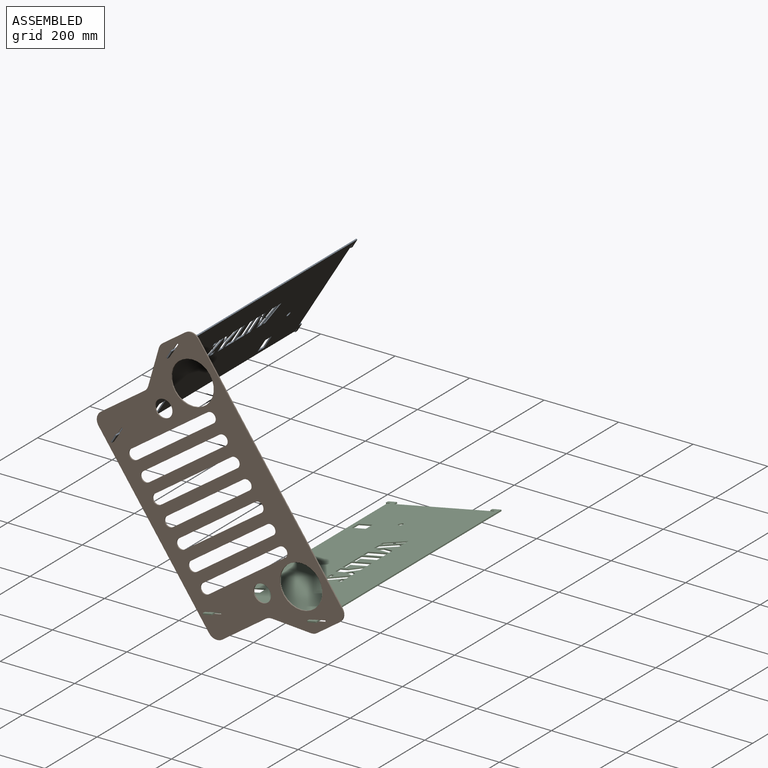
[diagram: assembled view]
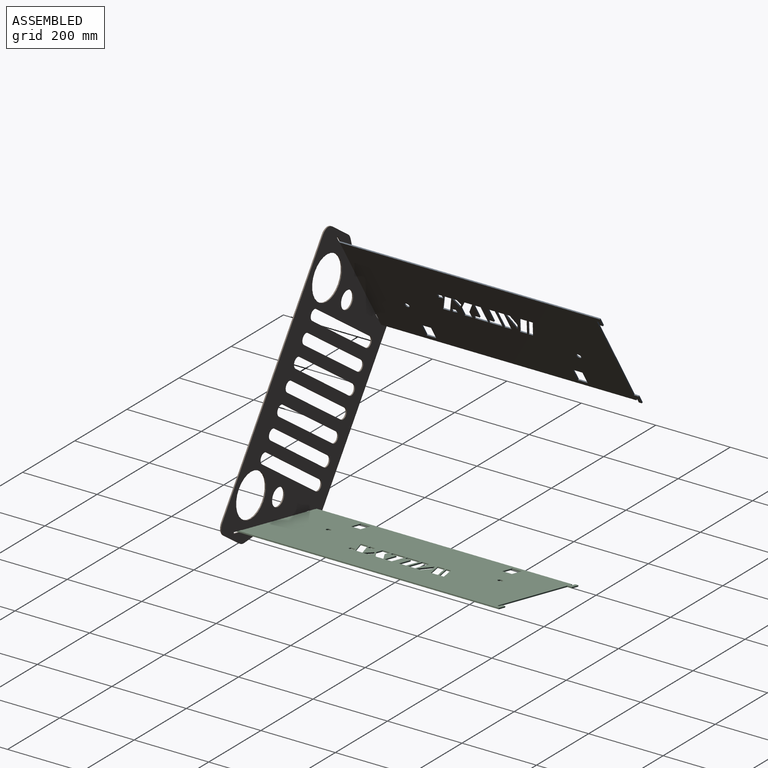
[diagram: assembled view, second angle]
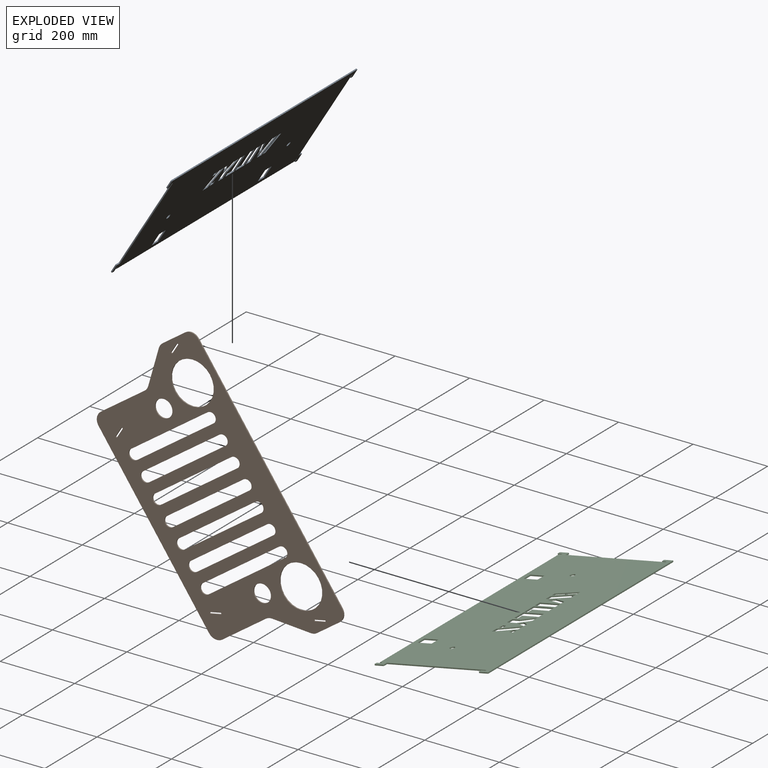
[diagram: exploded view]
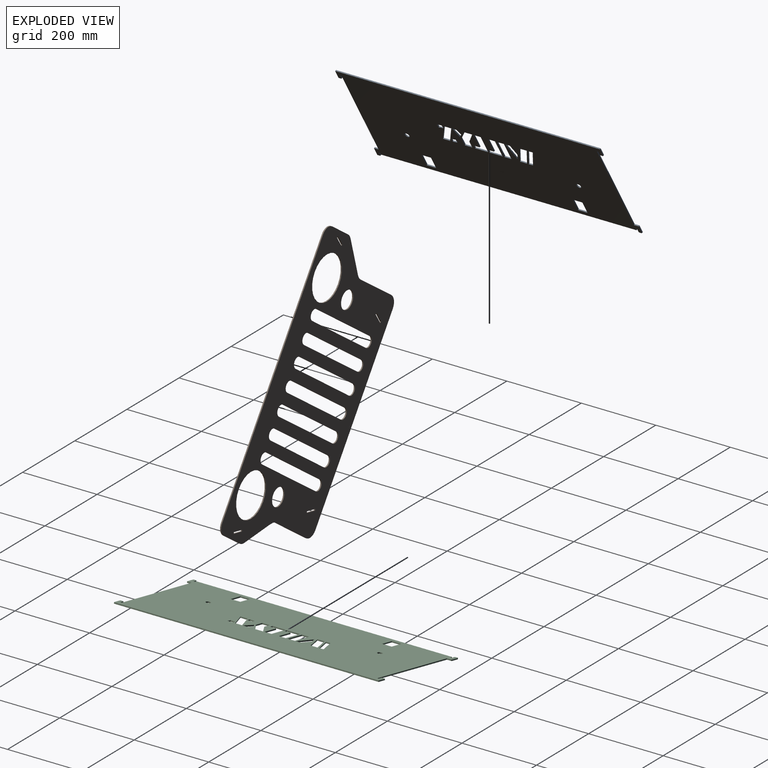
[diagram: exploded view, second angle]
ASSEMBLY  parts=3 mates=2
PART A: 107 faces, bbox 711.2x3.2x311.2 mm
  f0: plane 55.86x3.18mm, normal (1,0,0), area 177.3mm2, adj f1,f104,f105,f106
  f1: plane 18.72x3.18mm, normal (0,0,-1), area 59.4mm2, adj f0,f2,f105,f106
  f2: plane 55.86x3.18mm, normal (-1,0,0), area 177.3mm2, adj f1,f104,f105,f106
  f3: plane 55.86x19.47mm, normal (-0.94,0,-0.33), area 187.8mm2, adj f4,f89,f105,f106
  f4: plane 18.72x3.18mm, normal (0,0,1), area 59.4mm2, adj f3,f5,f105,f106
  f5: plane 55.86x19.47mm, normal (0.94,0,0.33), area 187.8mm2, adj f4,f89,f105,f106
  f6: plane 55.86x19.47mm, normal (-0.94,0,-0.33), area 187.8mm2, adj f7,f90,f105,f106
  f7: plane 11.52x3.18mm, normal (0,0,1), area 36.6mm2, adj f6,f8,f105,f106
  f8: plane 55.86x19.47mm, normal (0.94,0,0.33), area 187.8mm2, adj f7,f90,f105,f106
  f9: plane 55.86x23.58mm, normal (-0.92,0,-0.39), area 192.5mm2, adj f10,f91,f105,f106
  f10: plane 18.72x3.18mm, normal (0,0,1), area 59.4mm2, adj f9,f11,f105,f106
  f11: plane 55.86x23.58mm, normal (0.92,0,0.39), area 192.5mm2, adj f10,f91,f105,f106
  f12: plane 9.87x3.18mm, normal (-0.99,0,0.12), area 31.6mm2, adj f13,f92,f105,f106
  f13: plane 13.46x3.18mm, normal (0.11,0,0.99), area 43mm2, adj f12,f14,f105,f106
  f14: plane 9.87x3.18mm, normal (0.99,0,-0.12), area 31.6mm2, adj f13,f92,f105,f106
  f15: plane 9.87x3.18mm, normal (-0.99,0,0.12), area 31.6mm2, adj f16,f93,f105,f106
  f16: plane 13.46x3.18mm, normal (0.11,0,0.99), area 43mm2, adj f15,f17,f105,f106
  f17: plane 9.87x3.18mm, normal (0.99,0,-0.12), area 31.6mm2, adj f16,f93,f105,f106
  f18: plane 25.4x3.18mm, normal (0,0,-1), area 80.6mm2, adj f19,f94,f105,f106
  f19: plane 38.1x3.18mm, normal (-1,0,0), area 121mm2, adj f18,f20,f105,f106
  f20: plane 25.4x3.18mm, normal (0,0,1), area 80.6mm2, adj f19,f94,f105,f106
  f21: cylinder r=1.27mm len=3.18mm, axis (0,-1,0), area 6.3mm2, adj f22,f97,f105,f106
  f22: plane 22.86x3.18mm, normal (-1,0,0), area 72.6mm2, adj f21,f23,f105,f106
  f23: cylinder r=1.27mm len=3.18mm, axis (0,-1,0), area 6.3mm2, adj f22,f24,f105,f106
  f24: plane 6.35x3.18mm, normal (0,0,-1), area 20.2mm2, adj f23,f25,f105,f106
  f25: cylinder r=1.27mm len=3.18mm, axis (0,-1,0), area 6.3mm2, adj f24,f26,f105,f106
  f26: plane 10.16x3.18mm, normal (1,0,0), area 32.3mm2, adj f25,f27,f105,f106
  f27: cylinder r=1.27mm len=3.18mm, axis (0,-1,0), area 6.3mm2, adj f26,f28,f105,f106
  f28: plane 3.18x1.27mm, normal (0,0,-1), area 4mm2, adj f27,f29,f105,f106
  f29: cylinder r=1.27mm len=3.18mm, axis (0,-1,0), area 6.3mm2, adj f28,f30,f105,f106
  f30: plane 271.78x3.18mm, normal (-1,0,0), area 862.9mm2, adj f29,f31,f105,f106
  f31: plane 11.43x3.18mm, normal (0,0,1), area 36.3mm2, adj f30,f32,f105,f106
  f32: cylinder r=1.27mm len=3.18mm, axis (0,-1,0), area 6.3mm2, adj f31,f33,f105,f106
  f33: plane 22.86x3.18mm, normal (-1,0,0), area 72.6mm2, adj f32,f34,f105,f106
  f34: cylinder r=1.27mm len=3.18mm, axis (0,-1,0), area 6.3mm2, adj f33,f35,f105,f106
  f35: plane 6.35x3.18mm, normal (0,0,-1), area 20.2mm2, adj f34,f36,f105,f106
  f36: cylinder r=1.27mm len=3.18mm, axis (0,-1,0), area 6.3mm2, adj f35,f37,f105,f106
  f37: plane 10.16x3.18mm, normal (1,0,0), area 32.3mm2, adj f36,f38,f105,f106
  f38: cylinder r=1.27mm len=3.18mm, axis (0,-1,0), area 6.3mm2, adj f37,f39,f105,f106
  f39: plane 3.18x1.27mm, normal (0,0,-1), area 4mm2, adj f38,f40,f105,f106
  f40: cylinder r=1.27mm len=3.18mm, axis (0,-1,0), area 6.3mm2, adj f39,f41,f105,f106
  f41: plane 5.08x3.18mm, normal (-1,0,0), area 16.1mm2, adj f40,f42,f105,f106
  f42: plane 685.8x3.18mm, normal (0,0,-1), area 2177.4mm2, adj f41,f43,f105,f106
  f43: plane 5.08x3.18mm, normal (1,0,0), area 16.1mm2, adj f42,f44,f105,f106
  f44: cylinder r=1.27mm len=3.18mm, axis (0,-1,0), area 6.3mm2, adj f43,f45,f105,f106
  f45: plane 3.18x1.27mm, normal (0,0,-1), area 4mm2, adj f44,f46,f105,f106
  f46: cylinder r=1.27mm len=3.18mm, axis (0,-1,0), area 6.3mm2, adj f45,f47,f105,f106
  f47: plane 10.16x3.18mm, normal (-1,0,0), area 32.3mm2, adj f46,f48,f105,f106
  f48: cylinder r=1.27mm len=3.18mm, axis (0,-1,0), area 6.3mm2, adj f47,f49,f105,f106
  f49: plane 6.35x3.18mm, normal (0,0,-1), area 20.2mm2, adj f48,f50,f105,f106
  f50: cylinder r=1.27mm len=3.18mm, axis (0,-1,0), area 6.3mm2, adj f49,f51,f105,f106
  f51: plane 22.86x3.18mm, normal (1,0,0), area 72.6mm2, adj f50,f52,f105,f106
  f52: cylinder r=1.27mm len=3.18mm, axis (0,-1,0), area 6.3mm2, adj f51,f53,f105,f106
  f53: plane 11.43x3.18mm, normal (0,0,1), area 36.3mm2, adj f52,f54,f105,f106
  f54: plane 271.78x3.18mm, normal (1,0,0), area 862.9mm2, adj f53,f55,f105,f106
  f55: cylinder r=1.27mm len=3.18mm, axis (0,-1,0), area 6.3mm2, adj f54,f56,f105,f106
  f56: plane 3.18x1.27mm, normal (0,0,-1), area 4mm2, adj f55,f57,f105,f106
  f57: cylinder r=1.27mm len=3.18mm, axis (0,-1,0), area 6.3mm2, adj f56,f58,f105,f106
  f58: plane 10.16x3.18mm, normal (-1,0,0), area 32.3mm2, adj f57,f59,f105,f106
  f59: cylinder r=1.27mm len=3.18mm, axis (0,-1,0), area 6.3mm2, adj f58,f60,f105,f106
  f60: plane 6.35x3.18mm, normal (0,0,-1), area 20.2mm2, adj f59,f61,f105,f106
  f61: cylinder r=1.27mm len=3.18mm, axis (0,-1,0), area 6.3mm2, adj f60,f62,f105,f106
  f62: plane 22.86x3.18mm, normal (1,0,0), area 72.6mm2, adj f61,f63,f105,f106
  f63: cylinder r=1.27mm len=3.18mm, axis (0,-1,0), area 6.3mm2, adj f62,f97,f105,f106
  f64: plane 38.1x3.18mm, normal (1,0,0), area 121mm2, adj f65,f98,f105,f106
  f65: plane 25.4x3.18mm, normal (0,0,-1), area 80.6mm2, adj f64,f66,f105,f106
  f66: plane 38.1x3.18mm, normal (-1,0,0), area 121mm2, adj f65,f98,f105,f106
  f67: plane 3.18x0.49mm, normal (0.9,0,0.43), area 1.7mm2, adj f68,f99,f105,f106
  f68: plane 17.92x6.24mm, normal (0.94,0,0.33), area 60.2mm2, adj f67,f69,f105,f106
  f69: plane 29.79x9.81mm, normal (0.95,0,-0.31), area 99.6mm2, adj f68,f70,f105,f106
  f70: plane 12.37x3.18mm, normal (0,0,-1), area 39.3mm2, adj f69,f99,f105,f106
  f71: plane 45.84x3.18mm, normal (-1,0,0), area 145.5mm2, adj f72,f100,f105,f106
  f72: plane 16.22x3.18mm, normal (0,0,-1), area 51.5mm2, adj f71,f73,f105,f106
  f73: plane 10.02x3.18mm, normal (-1,0,0), area 31.8mm2, adj f72,f74,f105,f106
  f74: plane 34.94x3.18mm, normal (0,0,1), area 110.9mm2, adj f73,f75,f105,f106
  f75: plane 55.86x3.18mm, normal (1,0,0), area 177.3mm2, adj f74,f100,f105,f106
  f76: plane 45.84x3.18mm, normal (-1,0,0), area 145.5mm2, adj f77,f101,f105,f106
  f77: plane 16.22x3.18mm, normal (0,0,-1), area 51.5mm2, adj f76,f78,f105,f106
  f78: plane 10.02x3.18mm, normal (-1,0,0), area 31.8mm2, adj f77,f79,f105,f106
  f79: plane 34.94x3.18mm, normal (0,0,1), area 110.9mm2, adj f78,f80,f105,f106
  f80: plane 55.86x3.18mm, normal (1,0,0), area 177.3mm2, adj f79,f101,f105,f106
  f81: plane 26x12.45mm, normal (-0.9,0,0.43), area 91.5mm2, adj f82,f102,f105,f106
  f82: plane 11.78x7.34mm, normal (0.85,0,0.53), area 44.1mm2, adj f81,f83,f105,f106
  f83: plane 14.22x7.48mm, normal (0.88,0,-0.47), area 51mm2, adj f82,f102,f105,f106
  f84: plane 21x3.18mm, normal (0,0,-1), area 66.7mm2, adj f85,f103,f105,f106
  f85: plane 30.58x19.02mm, normal (-0.85,0,-0.53), area 114.3mm2, adj f84,f86,f105,f106
  f86: plane 25.27x3.18mm, normal (-1,0,0), area 80.2mm2, adj f85,f87,f105,f106
  f87: plane 19.87x3.18mm, normal (0,0,1), area 63.1mm2, adj f86,f88,f105,f106
  f88: plane 21.34x3.18mm, normal (1,0,0), area 67.8mm2, adj f87,f103,f105,f106
  f89: plane 18.72x3.18mm, normal (0,0,-1), area 59.4mm2, adj f3,f5,f105,f106
  f90: plane 11.53x3.18mm, normal (0,0,-1), area 36.6mm2, adj f6,f8,f105,f106
  f91: plane 18.72x3.18mm, normal (0,0,-1), area 59.4mm2, adj f9,f11,f105,f106
  f92: plane 13.45x3.18mm, normal (-0.11,0,-0.99), area 43mm2, adj f12,f14,f105,f106
  f93: plane 13.45x3.18mm, normal (-0.11,0,-0.99), area 43mm2, adj f15,f17,f105,f106
  f94: plane 38.1x3.18mm, normal (1,0,0), area 121mm2, adj f18,f20,f105,f106
  f95: cylinder r=6.35mm len=12.7mm, axis (0,-1,0), area 126.7mm2, adj f105,f106
  f96: cylinder r=6.35mm len=12.7mm, axis (0,-1,0), area 126.7mm2, adj f105,f106
  f97: plane 708.66x3.18mm, normal (0,0,1), area 2250mm2, adj f21,f63,f105,f106
  f98: plane 25.4x3.18mm, normal (0,0,1), area 80.6mm2, adj f64,f66,f105,f106
  f99: plane 48.2x15.71mm, normal (-0.95,0,0.31), area 161mm2, adj f67,f70,f105,f106
  f100: plane 18.72x3.18mm, normal (0,0,-1), area 59.4mm2, adj f71,f75,f105,f106
  f101: plane 18.72x3.18mm, normal (0,0,-1), area 59.4mm2, adj f76,f80,f105,f106
  f102: plane 12.3x3.18mm, normal (0,0,-1), area 39.1mm2, adj f81,f83,f105,f106
  f103: plane 34.51x20.15mm, normal (0.86,0,0.5), area 126.9mm2, adj f84,f88,f105,f106
  f104: plane 18.72x3.18mm, normal (0,0,1), area 59.4mm2, adj f0,f2,f105,f106
  f105: plane 711.2x311.15mm, normal (0,1,0), area 199563.7mm2, adj f0,f1,f2,f3,f4,f5,f6,f7
  f106: plane 711.2x311.15mm, normal (0,-1,0), area 199563.7mm2, adj f0,f1,f2,f3,f4,f5,f6,f7
PART B: 66 faces, bbox 723.1x3.2x381 mm
  f0: cylinder r=13.97mm len=27.94mm, axis (0,-1,0), area 139.3mm2, adj f1,f63,f64,f65
  f1: plane 251.46x3.18mm, normal (-1,0,0), area 798.4mm2, adj f0,f2,f64,f65
  f2: cylinder r=13.97mm len=27.94mm, axis (0,-1,0), area 139.3mm2, adj f1,f63,f64,f65
  f3: cylinder r=13.97mm len=27.94mm, axis (0,-1,0), area 139.3mm2, adj f4,f48,f64,f65
  f4: plane 251.46x3.18mm, normal (1,0,0), area 798.4mm2, adj f3,f5,f64,f65
  f5: cylinder r=13.97mm len=27.94mm, axis (0,-1,0), area 139.3mm2, adj f4,f48,f64,f65
  f6: cylinder r=13.97mm len=27.94mm, axis (0,-1,0), area 139.3mm2, adj f7,f49,f64,f65
  f7: plane 251.46x3.18mm, normal (1,0,0), area 798.4mm2, adj f6,f8,f64,f65
  f8: cylinder r=13.97mm len=27.94mm, axis (0,-1,0), area 139.3mm2, adj f7,f49,f64,f65
  f9: cylinder r=13.97mm len=27.94mm, axis (0,-1,0), area 139.3mm2, adj f10,f50,f64,f65
  f10: plane 251.46x3.18mm, normal (1,0,0), area 798.4mm2, adj f9,f11,f64,f65
  f11: cylinder r=13.97mm len=27.94mm, axis (0,-1,0), area 139.3mm2, adj f10,f50,f64,f65
  f12: cylinder r=25.4mm len=16.02mm, axis (0,-1,0), area 55mm2, adj f13,f51,f64,f65
  f13: plane 81.01x65.82mm, normal (0.78,0,-0.63), area 331.4mm2, adj f12,f14,f64,f65
  f14: cylinder r=25.4mm len=16.02mm, axis (0,-1,0), area 55mm2, adj f13,f15,f64,f65
  f15: plane 73.77x3.18mm, normal (1,0,0), area 234.2mm2, adj f14,f16,f64,f65
  f16: cylinder r=25.4mm len=25.4mm, axis (0,-1,0), area 126.7mm2, adj f15,f17,f64,f65
  f17: plane 672.29x3.18mm, normal (0,0,1), area 2134.5mm2, adj f16,f18,f64,f65
  f18: cylinder r=25.4mm len=25.4mm, axis (0,-1,0), area 126.7mm2, adj f17,f19,f64,f65
  f19: plane 73.77x3.18mm, normal (-1,0,0), area 234.2mm2, adj f18,f20,f64,f65
  f20: cylinder r=25.4mm len=16.02mm, axis (0,-1,0), area 55mm2, adj f19,f21,f64,f65
  f21: plane 81.01x65.82mm, normal (-0.78,0,-0.63), area 331.4mm2, adj f20,f22,f64,f65
  f22: cylinder r=25.4mm len=16.02mm, axis (0,-1,0), area 55mm2, adj f21,f23,f64,f65
  f23: plane 143.38x3.18mm, normal (-1,0,0), area 455.2mm2, adj f22,f24,f64,f65
  f24: cylinder r=25.4mm len=25.4mm, axis (0,-1,0), area 126.7mm2, adj f23,f25,f64,f65
  f25: plane 517.9x3.18mm, normal (0,0,-1), area 1644.3mm2, adj f24,f26,f64,f65
  f26: cylinder r=25.4mm len=25.4mm, axis (0,-1,0), area 126.7mm2, adj f25,f51,f64,f65
  f27: plane 29.09x12.72mm, normal (-0.92,0,0.4), area 100.8mm2, adj f28,f52,f64,f65
  f28: plane 3.49x3.18mm, normal (0.4,0,0.92), area 12.1mm2, adj f27,f29,f64,f65
  f29: plane 29.09x12.72mm, normal (0.92,0,-0.4), area 100.8mm2, adj f28,f52,f64,f65
  f30: plane 29.09x12.72mm, normal (-0.92,0,-0.4), area 100.8mm2, adj f31,f53,f64,f65
  f31: plane 3.49x3.18mm, normal (-0.4,0,0.92), area 12.1mm2, adj f30,f32,f64,f65
  f32: plane 29.09x12.72mm, normal (0.92,0,0.4), area 100.8mm2, adj f31,f53,f64,f65
  f33: plane 3.49x3.18mm, normal (0.4,0,-0.92), area 12.1mm2, adj f34,f58,f64,f65
  f34: plane 29.09x12.72mm, normal (-0.92,0,-0.4), area 100.8mm2, adj f33,f35,f64,f65
  f35: plane 3.49x3.18mm, normal (-0.4,0,0.92), area 12.1mm2, adj f34,f58,f64,f65
  f36: plane 3.49x3.18mm, normal (-0.4,0,-0.92), area 12.1mm2, adj f37,f59,f64,f65
  f37: plane 29.09x12.72mm, normal (-0.92,0,0.4), area 100.8mm2, adj f36,f38,f64,f65
  f38: plane 3.49x3.18mm, normal (0.4,0,0.92), area 12.1mm2, adj f37,f59,f64,f65
  f39: cylinder r=13.97mm len=27.94mm, axis (0,-1,0), area 139.3mm2, adj f40,f60,f64,f65
  f40: plane 251.46x3.18mm, normal (-1,0,0), area 798.4mm2, adj f39,f41,f64,f65
  f41: cylinder r=13.97mm len=27.94mm, axis (0,-1,0), area 139.3mm2, adj f40,f60,f64,f65
  f42: cylinder r=13.97mm len=27.94mm, axis (0,-1,0), area 139.3mm2, adj f43,f61,f64,f65
  f43: plane 251.46x3.18mm, normal (-1,0,0), area 798.4mm2, adj f42,f44,f64,f65
  f44: cylinder r=13.97mm len=27.94mm, axis (0,-1,0), area 139.3mm2, adj f43,f61,f64,f65
  f45: cylinder r=13.97mm len=27.94mm, axis (0,-1,0), area 139.3mm2, adj f46,f62,f64,f65
  f46: plane 251.46x3.18mm, normal (-1,0,0), area 798.4mm2, adj f45,f47,f64,f65
  f47: cylinder r=13.97mm len=27.94mm, axis (0,-1,0), area 139.3mm2, adj f46,f62,f64,f65
  f48: plane 251.46x3.18mm, normal (-1,0,0), area 798.4mm2, adj f3,f5,f64,f65
  f49: plane 251.46x3.18mm, normal (-1,0,0), area 798.4mm2, adj f6,f8,f64,f65
  f50: plane 251.46x3.18mm, normal (-1,0,0), area 798.4mm2, adj f9,f11,f64,f65
  f51: plane 143.38x3.18mm, normal (1,0,0), area 455.2mm2, adj f12,f26,f64,f65
  f52: plane 3.49x3.18mm, normal (-0.4,0,-0.92), area 12.1mm2, adj f27,f29,f64,f65
  f53: plane 3.49x3.18mm, normal (0.4,0,-0.92), area 12.1mm2, adj f30,f32,f64,f65
  f54: cylinder r=57.15mm len=114.3mm, axis (0,-1,0), area 1140.1mm2, adj f64,f65
  f55: cylinder r=23.49mm len=46.99mm, axis (0,-1,0), area 468.7mm2, adj f64,f65
  f56: cylinder r=23.49mm len=46.99mm, axis (0,-1,0), area 468.7mm2, adj f64,f65
  f57: cylinder r=57.15mm len=114.3mm, axis (0,-1,0), area 1140.1mm2, adj f64,f65
  f58: plane 29.09x12.72mm, normal (0.92,0,0.4), area 100.8mm2, adj f33,f35,f64,f65
  f59: plane 29.09x12.72mm, normal (0.92,0,-0.4), area 100.8mm2, adj f36,f38,f64,f65
  f60: plane 251.46x3.18mm, normal (1,0,0), area 798.4mm2, adj f39,f41,f64,f65
  f61: plane 251.46x3.18mm, normal (1,0,0), area 798.4mm2, adj f42,f44,f64,f65
  f62: plane 251.46x3.18mm, normal (1,0,0), area 798.4mm2, adj f45,f47,f64,f65
  f63: plane 251.46x3.18mm, normal (1,0,0), area 798.4mm2, adj f0,f2,f64,f65
  f64: plane 723.09x381mm, normal (0,1,0), area 162211mm2, adj f0,f1,f2,f3,f4,f5,f6,f7
  f65: plane 723.09x381mm, normal (0,-1,0), area 162211mm2, adj f0,f1,f2,f3,f4,f5,f6,f7
PART C: same geometry as A
PLACE A rot(axis=(-0.26,0.26,-0.93),94.2deg) t=(466.91,1898.22,-1232.61)mm
PLACE B rot(axis=(0,1,0),55deg) t=(579.38,1132.72,-1413.67)mm
PLACE C rot(axis=(-0.54,0.54,-0.65),113.7deg) t=(710.42,1898.22,-1578.17)mm
MATE fastened B.f38 <-> C.f56  axis (0.98,0,0.2) through (1009.54,1134.31,-1519.58)mm
MATE fastened B.f35 <-> A.f56  axis (0.52,0,0.85) through (626.98,1134.31,-973.23)mm
